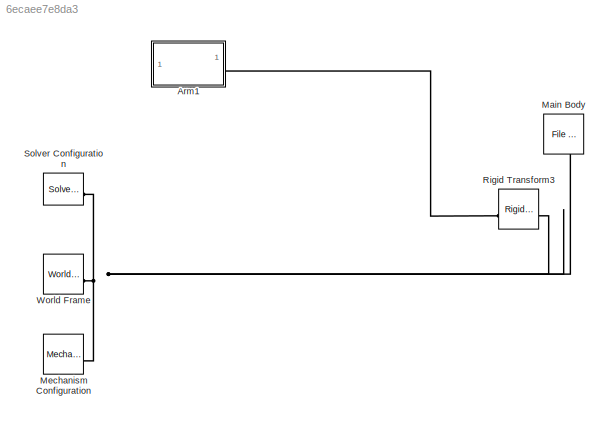
MODEL slx_6ecaee7e8da3
KIND model
CONFIG AbsTol = 1e-3
CONFIG EnableMultiTasking = on
CONFIG FixedStep = auto
CONFIG MaxStep = auto
CONFIG MinStep = auto
CONFIG RelTol = 1e-3
CONFIG SampleTimeConstraint = Unconstrained
CONFIG SolverName = VariableStepAuto
CONFIG StartTime = 0.0
CONFIG StopTime = 10.0
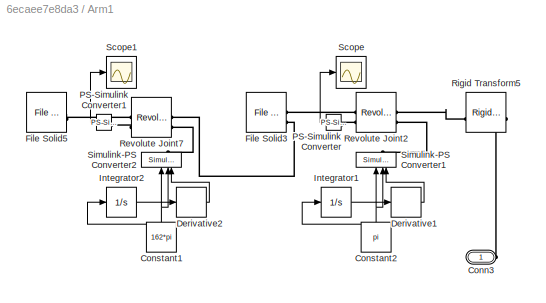
BLOCK [SubSystem] Arm1
  NameLocation = top
BLOCK [PMIOPort] Arm1/Conn3
  Side = Left
BLOCK [Constant] Arm1/Constant1
  NameLocation = right
  Value = 162*pi
BLOCK [Constant] Arm1/Constant2
  NameLocation = right
  Value = pi
BLOCK [Derivative] Arm1/Derivative1
BLOCK [Derivative] Arm1/Derivative2
BLOCK [Reference] Arm1/File Solid3  REF=sm_lib/Body Elements/File Solid
  NameLocation = top
  SourceBlock = sm_lib/Body Elements/File Solid
  SourceType = File Solid
BLOCK [Reference] Arm1/File Solid5  REF=sm_lib/Body Elements/File Solid
  NameLocation = top
  SourceBlock = sm_lib/Body Elements/File Solid
  SourceType = File Solid
BLOCK [Integrator] Arm1/Integrator1
BLOCK [Integrator] Arm1/Integrator2
BLOCK [Reference] Arm1/PS-Simulink Converter  REF=nesl_utility/PS-Simulink
Converter
  NameLocation = top
  SourceBlock = nesl_utility/PS-Simulink\nConverter
  SourceType = PS-Simulink\nConverter
BLOCK [Reference] Arm1/PS-Simulink Converter1  REF=nesl_utility/PS-Simulink
Converter
  NameLocation = top
  SourceBlock = nesl_utility/PS-Simulink\nConverter
  SourceType = PS-Simulink\nConverter
BLOCK [Reference] Arm1/Revolute Joint2  REF=sm_lib/Joints/Revolute Joint
  SourceBlock = sm_lib/Joints/Revolute Joint
  SourceType = Revolute Joint
BLOCK [Reference] Arm1/Revolute Joint7  REF=sm_lib/Joints/Revolute Joint
  SourceBlock = sm_lib/Joints/Revolute Joint
  SourceType = Revolute Joint
BLOCK [Reference] Arm1/Rigid Transform5  REF=sm_lib/Frames and
Transforms/Rigid
Transform
  SourceBlock = sm_lib/Frames and\nTransforms/Rigid\nTransform
  SourceType = Rigid\nTransform
BLOCK [Scope] Arm1/Scope
  Floating = off
  NumInputPorts = 1
  ScopeSpecificationString = Simulink.scopes.TimeScopeBlockCfg('CurrentConfiguration', extmgr.ConfigurationSet(extmgr.Configuration('Core','General UI',true),extmgr.Configuration('Core','Source UI',true),extmgr.Configuration('Sources','WiredSimulink',true),extmgr.Configuration('Visuals','Time Domain',true,'SerializedDisplays',{struct('MinYLimReal','1.79448','MaxYLimReal','1.80584','YLabelReal','','MinYLimMag','1.79448','MaxYL...<+1339ch>
BLOCK [Scope] Arm1/Scope1
  Floating = off
  NumInputPorts = 1
  ScopeSpecificationString = Simulink.scopes.TimeScopeBlockCfg('CurrentConfiguration', extmgr.ConfigurationSet(extmgr.Configuration('Core','General UI',true),extmgr.Configuration('Core','Source UI',true),extmgr.Configuration('Sources','WiredSimulink',true,'DataLoggingVariableName','ScopeData1'),extmgr.Configuration('Visuals','Time Domain',true,'SerializedDisplays',{struct('MinYLimReal','0.02915968','MaxYLimReal','0.02916033',...<+1436ch>
BLOCK [Reference] Arm1/Simulink-PS Converter1  REF=nesl_utility/Simulink-PS
Converter
  NameLocation = right
  SourceBlock = nesl_utility/Simulink-PS\nConverter
  SourceType = Simulink-PS\nConverter
BLOCK [Reference] Arm1/Simulink-PS Converter2  REF=nesl_utility/Simulink-PS
Converter
  NameLocation = right
  SourceBlock = nesl_utility/Simulink-PS\nConverter
  SourceType = Simulink-PS\nConverter
BLOCK [Reference] Main Body  REF=sm_lib/Body Elements/File Solid
  NameLocation = left
  SourceBlock = sm_lib/Body Elements/File Solid
  SourceType = File Solid
BLOCK [Reference] Mechanism Configuration  REF=sm_lib/Utilities/Mechanism
Configuration
  SourceBlock = sm_lib/Utilities/Mechanism\nConfiguration
  SourceType = Mechanism\nConfiguration
BLOCK [Reference] Rigid Transform3  REF=sm_lib/Frames and
Transforms/Rigid
Transform
  SourceBlock = sm_lib/Frames and\nTransforms/Rigid\nTransform
  SourceType = Rigid\nTransform
BLOCK [Reference] Solver Configuration  REF=nesl_utility/Solver
Configuration
  SourceBlock = nesl_utility/Solver\nConfiguration
  SourceType = Solver\nConfiguration
BLOCK [Reference] World Frame  REF=sm_lib/Frames and
Transforms/World Frame
  SourceBlock = sm_lib/Frames and\nTransforms/World Frame
  SourceType = World Frame
NET Arm1/Constant1:1 -> Arm1/Derivative2:1, Arm1/Integrator2:1, Arm1/Simulink-PS Converter2:2
NET Arm1/Constant2:1 -> Arm1/Derivative1:1, Arm1/Integrator1:1, Arm1/Simulink-PS Converter1:2
LINE Arm1/Derivative1:1 -> Arm1/Simulink-PS Converter1:3
LINE Arm1/Derivative2:1 -> Arm1/Simulink-PS Converter2:3
LINE Arm1/Integrator1:1 -> Arm1/Simulink-PS Converter1:1
LINE Arm1/Integrator2:1 -> Arm1/Simulink-PS Converter2:1
LINE Arm1/PS-Simulink Converter1:1 -> Arm1/Scope1:1
LINE Arm1/PS-Simulink Converter:1 -> Arm1/Scope:1
PLINE Arm1/Conn3:RConn1 -- Arm1/Rigid Transform5:LConn1
PLINE Arm1/File Solid3:LConn1 -- Arm1/Revolute Joint2:RConn1
PLINE Arm1/File Solid3:LConn2 -- Arm1/Revolute Joint7:LConn1
PLINE Arm1/File Solid5:LConn1 -- Arm1/Revolute Joint7:RConn1
PLINE Arm1/PS-Simulink Converter1:LConn1 -- Arm1/Revolute Joint7:RConn2
PLINE Arm1/PS-Simulink Converter:LConn1 -- Arm1/Revolute Joint2:RConn2
PLINE Arm1/Revolute Joint2:LConn1 -- Arm1/Rigid Transform5:RConn1
PLINE Arm1/Revolute Joint2:LConn2 -- Arm1/Simulink-PS Converter1:RConn1
PLINE Arm1/Revolute Joint7:LConn2 -- Arm1/Simulink-PS Converter2:RConn1
PLINE Arm1:LConn1 -- Rigid Transform3:RConn1
PNET net1: Main Body:RConn1 -- Mechanism Configuration:RConn1 -- Rigid Transform3:LConn1 -- Solver Configuration:RConn1 -- World Frame:RConn1
note: NET lines group one-source signal fan-out (src -> all destinations, sorted); 1:1 wires keep LINE; PNET lines group multi-terminal physical nets as a canonical sorted terminal list (undirected conserving connections); 2-terminal nets keep the pairwise PLINE form
